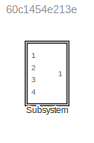
MODEL slx_60c1454e213e
KIND model
CONFIG AbsTol = auto
CONFIG EnableMultiTasking = off
CONFIG FixedStep = auto
CONFIG MaxStep = auto
CONFIG MinStep = auto
CONFIG RelTol = 1e-3
CONFIG SampleTimeConstraint = Unconstrained
CONFIG SolverName = VariableStepAuto
CONFIG StartTime = 0.0
CONFIG StopTime = 7.1
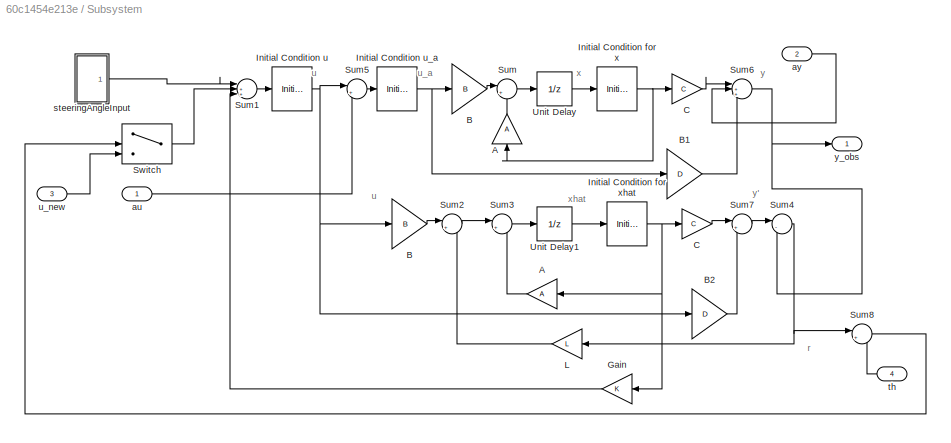
BLOCK [SubSystem] Subsystem
  Ports = [4, 1]
  RequestExecContextInheritance = off
BLOCK [Gain] Subsystem/A
  Gain = A
  Multiplication = Matrix(K*u)
  NameLocation = top
BLOCK [Gain] Subsystem/A 
  Gain = A
  Multiplication = Matrix(K*u)
  NameLocation = right
BLOCK [Gain] Subsystem/B
  Gain = B
  Multiplication = Matrix(K*u)
BLOCK [Gain] Subsystem/B 
  Gain = B
  Multiplication = Matrix(K*u)
BLOCK [Gain] Subsystem/B1
  Gain = D
  Multiplication = Matrix(K*u)
BLOCK [Gain] Subsystem/B2
  Gain = D
  Multiplication = Matrix(K*u)
BLOCK [Gain] Subsystem/C
  Gain = C
  Multiplication = Matrix(K*u)
BLOCK [Gain] Subsystem/C 
  Gain = C
  Multiplication = Matrix(K*u)
BLOCK [Gain] Subsystem/Gain
  Gain = K
  Multiplication = Matrix(K*u)
  NameLocation = top
BLOCK [InitialCondition] Subsystem/Initial Condition for x
  Value = [0;0]
BLOCK [InitialCondition] Subsystem/Initial Condition for xhat
  Value = [0;0]
BLOCK [InitialCondition] Subsystem/Initial Condition u
  Value = [0;0]
BLOCK [InitialCondition] Subsystem/Initial Condition u_a 
  Value = [0;0]
BLOCK [Gain] Subsystem/L
  Gain = L
  Multiplication = Matrix(K*u)
  NameLocation = top
BLOCK [Sum] Subsystem/Sum
  Inputs = |++
  Ports = [2, 1]
BLOCK [Sum] Subsystem/Sum1
  Inputs = |++-
  Ports = [3, 1]
BLOCK [Sum] Subsystem/Sum2
  Inputs = |++
  Ports = [2, 1]
BLOCK [Sum] Subsystem/Sum3
  Inputs = |++
  Ports = [2, 1]
BLOCK [Sum] Subsystem/Sum4
  Inputs = |-+
  NameLocation = top
  Ports = [2, 1]
BLOCK [Sum] Subsystem/Sum5
  Inputs = |++
  Ports = [2, 1]
BLOCK [Sum] Subsystem/Sum6
  Inputs = |+++
  Ports = [3, 1]
BLOCK [Sum] Subsystem/Sum7
  Inputs = |++
  NameLocation = top
  Ports = [2, 1]
BLOCK [Sum] Subsystem/Sum8
  Inputs = |+-
  Ports = [2, 1]
BLOCK [Switch] Subsystem/Switch
  Criteria = u2 > Threshold
  InputSameDT = off
  SaturateOnIntegerOverflow = off
BLOCK [UnitDelay] Subsystem/Unit Delay
  HasFrameUpgradeWarning = on
  SampleTime = -1
BLOCK [UnitDelay] Subsystem/Unit Delay1
  HasFrameUpgradeWarning = on
  SampleTime = -1
BLOCK [Inport] Subsystem/au
BLOCK [Inport] Subsystem/ay
  Port = 2
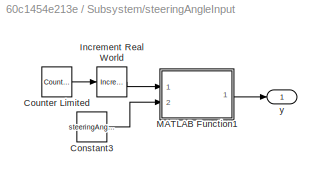
BLOCK [SubSystem] Subsystem/steeringAngleInput
  Ports = [0, 1]
  RequestExecContextInheritance = off
BLOCK [Constant] Subsystem/steeringAngleInput/Constant3
  SampleTime = Ts
  Value = steeringAngle
BLOCK [Reference] Subsystem/steeringAngleInput/Counter Limited  REF=simulink/Sources/Counter
Limited
  Ports = [0, 1]
  SourceBlock = simulink/Sources/Counter\nLimited
  SourceProductBaseCode = SL
  SourceType = Counter Limited
BLOCK [Reference] Subsystem/steeringAngleInput/Increment Real World  REF=simulink/Additional Math
& Discrete/Additional Math:
Increment - Decrement/Increment
Real World
  Ports = [1, 1]
  SourceBlock = simulink/Additional Math\n& Discrete/Additional Math:\nIncrement - Decrement/Increment\nReal World
  SourceProductBaseCode = SL
  SourceType = Real World Value Increment
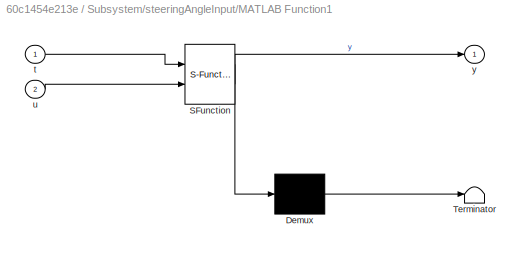
BLOCK [SubSystem] Subsystem/steeringAngleInput/MATLAB Function1
  ErrorFcn = Stateflow.Translate.translate
  PermitHierarchicalResolution = ExplicitOnly
  Ports = [2, 1]
  RequestExecContextInheritance = off
  SFBlockType = MATLAB Function
  TreatAsAtomicUnit = on
BLOCK [Demux] Subsystem/steeringAngleInput/MATLAB Function1/ Demux 
  Outputs = 1
  Ports = [1, 1]
BLOCK [S-Function] Subsystem/steeringAngleInput/MATLAB Function1/ SFunction 
  EnableBusSupport = off
  FunctionName = sf_sfun
  PortCounts = [2 2]
  Ports = [2, 2]
  SFcnIsStateOwnerBlock = off
  SFunctionDeploymentMode = off
  Tag = Stateflow S-Function 1
BLOCK [Terminator] Subsystem/steeringAngleInput/MATLAB Function1/ Terminator 
BLOCK [Inport] Subsystem/steeringAngleInput/MATLAB Function1/t
BLOCK [Inport] Subsystem/steeringAngleInput/MATLAB Function1/u
  Port = 2
BLOCK [Outport] Subsystem/steeringAngleInput/MATLAB Function1/y
  VectorParamsAs1DForOutWhenUnconnected = off
BLOCK [Outport] Subsystem/steeringAngleInput/y
BLOCK [Inport] Subsystem/th
  Port = 4
BLOCK [Inport] Subsystem/u_new
  Port = 3
BLOCK [Outport] Subsystem/y_obs
ANNOTATION Subsystem: r
ANNOTATION Subsystem: u
ANNOTATION Subsystem: u_a
ANNOTATION Subsystem: x
ANNOTATION Subsystem: xhat
ANNOTATION Subsystem: y
ANNOTATION Subsystem: y'
LINE Subsystem/A :1 -> Subsystem/Sum:2
LINE Subsystem/A:1 -> Subsystem/Sum3:2
LINE Subsystem/B :1 -> Subsystem/Sum:1
LINE Subsystem/B1:1 -> Subsystem/Sum6:3
LINE Subsystem/B2:1 -> Subsystem/Sum7:2
LINE Subsystem/B:1 -> Subsystem/Sum2:1
LINE Subsystem/C :1 -> Subsystem/Sum6:1
LINE Subsystem/C:1 -> Subsystem/Sum7:1
LINE Subsystem/Gain:1 -> Subsystem/Sum1:3
NET Subsystem/Initial Condition for x:1 -> Subsystem/A :1, Subsystem/C :1
NET Subsystem/Initial Condition for xhat:1 -> Subsystem/A:1, Subsystem/C:1, Subsystem/Gain:1
NET Subsystem/Initial Condition u:1 -> Subsystem/B2:1, Subsystem/B:1, Subsystem/Sum5:1
NET Subsystem/Initial Condition u_a :1 -> Subsystem/B :1, Subsystem/B1:1
LINE Subsystem/L:1 -> Subsystem/Sum2:2
LINE Subsystem/Sum1:1 -> Subsystem/Initial Condition u:1
LINE Subsystem/Sum2:1 -> Subsystem/Sum3:1
LINE Subsystem/Sum3:1 -> Subsystem/Unit Delay1:1
NET Subsystem/Sum4:1 -> Subsystem/L:1, Subsystem/Sum8:1
LINE Subsystem/Sum5:1 -> Subsystem/Initial Condition u_a :1
NET Subsystem/Sum6:1 -> Subsystem/Sum4:2, Subsystem/y_obs:1
LINE Subsystem/Sum7:1 -> Subsystem/Sum4:1
LINE Subsystem/Sum8:1 -> Subsystem/Switch:2
LINE Subsystem/Sum:1 -> Subsystem/Unit Delay:1
LINE Subsystem/Switch:1 -> Subsystem/Sum1:2
LINE Subsystem/Unit Delay1:1 -> Subsystem/Initial Condition for xhat:1
LINE Subsystem/Unit Delay:1 -> Subsystem/Initial Condition for x:1
LINE Subsystem/au:1 -> Subsystem/Sum5:2
LINE Subsystem/ay:1 -> Subsystem/Sum6:2
LINE Subsystem/steeringAngleInput/Constant3:1 -> Subsystem/steeringAngleInput/MATLAB Function1:2
LINE Subsystem/steeringAngleInput/Counter Limited:1 -> Subsystem/steeringAngleInput/Increment Real World:1
LINE Subsystem/steeringAngleInput/Increment Real World:1 -> Subsystem/steeringAngleInput/MATLAB Function1:1
LINE Subsystem/steeringAngleInput/MATLAB Function1:1 -> Subsystem/steeringAngleInput/y:1
LINE Subsystem/steeringAngleInput:1 -> Subsystem/Sum1:1
LINE Subsystem/th:1 -> Subsystem/Sum8:2
LINE Subsystem/u_new:1 -> Subsystem/Switch:3
note: NET lines group one-source signal fan-out (src -> all destinations, sorted); 1:1 wires keep LINE
CHART Subsystem/steeringAngleInput/MATLAB Function1 states=1 transitions=1
  STATE_LABEL 'eML_blk_kernel()'
  STATE_LABEL "SCRIPT:\nfunction y = fcn(t, u)\ny = u(t)*(pi/180)*0.0625;\n%for t = 1 :100\n    %y = au(:, t);\n    %y = (-1 + 2.*rand(1, 2))'; \nend"
CHART  states=0 transitions=0
